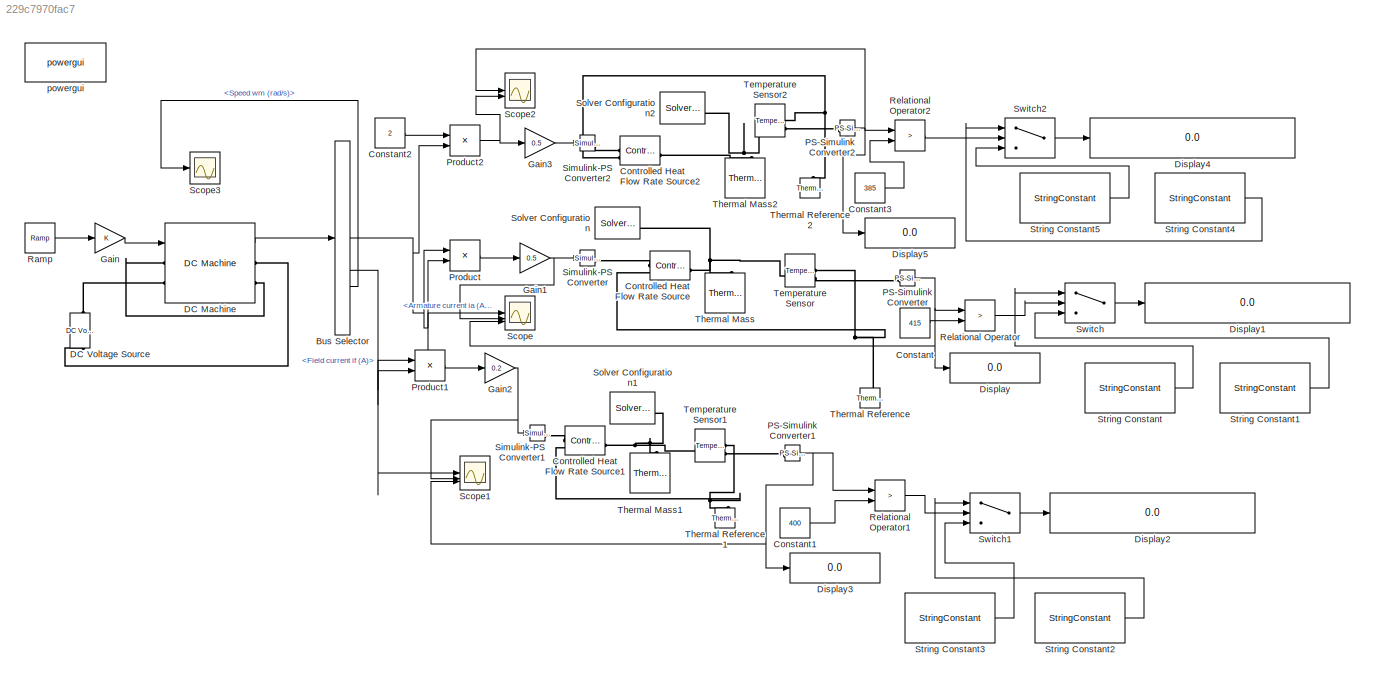
MODEL slx_229c7970fac7
KIND model
CONFIG AbsTol = auto
CONFIG EnableMultiTasking = off
CONFIG FixedStep = auto
CONFIG MaxStep = auto
CONFIG MinStep = auto
CONFIG RelTol = 1e-3
CONFIG SampleTimeConstraint = Unconstrained
CONFIG SolverName = VariableStepAuto
CONFIG StartTime = 0.0
CONFIG StopTime = 1800
BLOCK [BusSelector] Bus Selector
  OutputSignals = Armature current ia (A),Field current if (A),Speed wm (rad/s)
BLOCK [Constant] Constant
  Value = 415
BLOCK [Constant] Constant1
  Value = 400
BLOCK [Constant] Constant2
  Value = 2
BLOCK [Constant] Constant3
  Value = 385
BLOCK [Reference] Controlled Heat Flow Rate Source  REF=fl_lib/Thermal/Thermal Sources/Controlled Heat Flow
Rate Source
  SourceBlock = fl_lib/Thermal/Thermal Sources/Controlled Heat Flow\nRate Source
  SourceType = Controlled Heat Flow\nRate Source
BLOCK [Reference] Controlled Heat Flow Rate Source1  REF=fl_lib/Thermal/Thermal Sources/Controlled Heat Flow
Rate Source
  SourceBlock = fl_lib/Thermal/Thermal Sources/Controlled Heat Flow\nRate Source
  SourceType = Controlled Heat Flow\nRate Source
BLOCK [Reference] Controlled Heat Flow Rate Source2  REF=fl_lib/Thermal/Thermal Sources/Controlled Heat Flow
Rate Source
  SourceBlock = fl_lib/Thermal/Thermal Sources/Controlled Heat Flow\nRate Source
  SourceType = Controlled Heat Flow\nRate Source
BLOCK [Reference] DC Machine  REF=spsDCMachineLib/DC Machine
  LibrarySourceBlock = sps_lib/Electrical Machines/DC Machine
  SourceBlock = spsDCMachineLib/DC Machine
  SourceType = DC machine
BLOCK [Reference] DC Voltage Source  REF=spsDCVoltageSourceLib/DC Voltage Source
  LibrarySourceBlock = sps_lib/Sources/DC Voltage Source
  SourceBlock = spsDCVoltageSourceLib/DC Voltage Source
  SourceType = DC Voltage Source
BLOCK [Display] Display
  Decimation = 1
BLOCK [Display] Display1
  Decimation = 1
BLOCK [Display] Display2
  Decimation = 1
BLOCK [Display] Display3
  Decimation = 1
BLOCK [Display] Display4
  Decimation = 1
BLOCK [Display] Display5
  Decimation = 1
BLOCK [Gain] Gain
BLOCK [Gain] Gain1
  Gain = 0.5
BLOCK [Gain] Gain2
  Gain = 0.2
BLOCK [Gain] Gain3
  Gain = 0.5
BLOCK [Reference] PS-Simulink Converter  REF=nesl_utility/PS-Simulink
Converter
  SourceBlock = nesl_utility/PS-Simulink\nConverter
  SourceType = PS-Simulink\nConverter
BLOCK [Reference] PS-Simulink Converter1  REF=nesl_utility/PS-Simulink
Converter
  SourceBlock = nesl_utility/PS-Simulink\nConverter
  SourceType = PS-Simulink\nConverter
BLOCK [Reference] PS-Simulink Converter2  REF=nesl_utility/PS-Simulink
Converter
  SourceBlock = nesl_utility/PS-Simulink\nConverter
  SourceType = PS-Simulink\nConverter
BLOCK [Product] Product
BLOCK [Product] Product1
BLOCK [Product] Product2
BLOCK [Reference] Ramp  REF=simulink/Sources/Ramp
  SourceBlock = simulink/Sources/Ramp
  SourceType = Ramp
BLOCK [RelationalOperator] Relational Operator
  InputSameDT = off
  Operator = >
  OutDataTypeStr = boolean
  RndMeth = Simplest
BLOCK [RelationalOperator] Relational Operator1
  InputSameDT = off
  Operator = >
  OutDataTypeStr = boolean
  RndMeth = Simplest
BLOCK [RelationalOperator] Relational Operator2
  InputSameDT = off
  Operator = >
  OutDataTypeStr = boolean
  RndMeth = Simplest
BLOCK [Scope] Scope
  Floating = off
  NumInputPorts = 3
  ScopeSpecificationString = Simulink.scopes.TimeScopeBlockCfg('CurrentConfiguration', extmgr.ConfigurationSet(extmgr.Configuration('Core','General UI',true),extmgr.Configuration('Core','Source UI',true),extmgr.Configuration('Sources','WiredSimulink',true),extmgr.Configuration('Visuals','Time Domain',true,'SerializedDisplays',{struct('MinYLimReal','-4.50869','MaxYLimReal','48.87733','YLabelReal','','MinYLimMag','0.00000','Max...<+3039ch>
BLOCK [Scope] Scope1
  Floating = off
  NumInputPorts = 3
  ScopeSpecificationString = Simulink.scopes.TimeScopeBlockCfg('CurrentConfiguration', extmgr.ConfigurationSet(extmgr.Configuration('Core','General UI',true),extmgr.Configuration('Core','Source UI',true),extmgr.Configuration('Sources','WiredSimulink',true,'DataLoggingVariableName','ScopeData1'),extmgr.Configuration('Visuals','Time Domain',true,'SerializedDisplays',{struct('MinYLimReal','-4.50869','MaxYLimReal','48.87733','YLa...<+3074ch>
BLOCK [Scope] Scope2
  Floating = off
  NumInputPorts = 2
  ScopeSpecificationString = Simulink.scopes.TimeScopeBlockCfg('CurrentConfiguration', extmgr.ConfigurationSet(extmgr.Configuration('Core','General UI',true),extmgr.Configuration('Core','Source UI',true),extmgr.Configuration('Sources','WiredSimulink',true,'DataLoggingVariableName','ScopeData2'),extmgr.Configuration('Visuals','Time Domain',true,'SerializedDisplays',{struct('MinYLimReal','279.59505','MaxYLimReal','463.64455','Y...<+2194ch>
BLOCK [Scope] Scope3
  Floating = off
  NumInputPorts = 1
  ScopeSpecificationString = Simulink.scopes.TimeScopeBlockCfg('CurrentConfiguration', extmgr.ConfigurationSet(extmgr.Configuration('Core','General UI',true),extmgr.Configuration('Core','Source UI',true),extmgr.Configuration('Sources','WiredSimulink',true,'DataLoggingVariableName','ScopeData1'),extmgr.Configuration('Visuals','Time Domain',true,'SerializedDisplays',{struct('MinYLimReal','-331.12675','MaxYLimReal','45.28819','Y...<+1478ch>
BLOCK [Reference] Simulink-PS Converter  REF=nesl_utility/Simulink-PS
Converter
  SourceBlock = nesl_utility/Simulink-PS\nConverter
  SourceType = Simulink-PS\nConverter
BLOCK [Reference] Simulink-PS Converter1  REF=nesl_utility/Simulink-PS
Converter
  SourceBlock = nesl_utility/Simulink-PS\nConverter
  SourceType = Simulink-PS\nConverter
BLOCK [Reference] Simulink-PS Converter2  REF=nesl_utility/Simulink-PS
Converter
  SourceBlock = nesl_utility/Simulink-PS\nConverter
  SourceType = Simulink-PS\nConverter
BLOCK [Reference] Solver Configuration  REF=nesl_utility/Solver
Configuration
  SourceBlock = nesl_utility/Solver\nConfiguration
  SourceType = Solver\nConfiguration
BLOCK [Reference] Solver Configuration1  REF=nesl_utility/Solver
Configuration
  SourceBlock = nesl_utility/Solver\nConfiguration
  SourceType = Solver\nConfiguration
BLOCK [Reference] Solver Configuration2  REF=nesl_utility/Solver
Configuration
  SourceBlock = nesl_utility/Solver\nConfiguration
  SourceType = Solver\nConfiguration
BLOCK [StringConstant] String Constant
  String = "ARMATURE WINDING HEATING"
BLOCK [StringConstant] String Constant1
  String = "NORMAL"
BLOCK [StringConstant] String Constant2
  String = "FIELD WINDING HEATING"
BLOCK [StringConstant] String Constant3
  String = "NORMAL"
BLOCK [StringConstant] String Constant4
  String = "BRUSH HEATING"
BLOCK [StringConstant] String Constant5
  String = "NORMAL"
BLOCK [Switch] Switch
  Criteria = u2 > Threshold
  InputSameDT = off
  SaturateOnIntegerOverflow = off
  Threshold = 0.5
BLOCK [Switch] Switch1
  Criteria = u2 > Threshold
  InputSameDT = off
  SaturateOnIntegerOverflow = off
  Threshold = 0.5
BLOCK [Switch] Switch2
  Criteria = u2 > Threshold
  InputSameDT = off
  SaturateOnIntegerOverflow = off
  Threshold = 0.5
BLOCK [Reference] Temperature Sensor  REF=fl_lib/Thermal/Thermal Sensors/Temperature Sensor
  SourceBlock = fl_lib/Thermal/Thermal Sensors/Temperature Sensor
  SourceType = Temperature Sensor
BLOCK [Reference] Temperature Sensor1  REF=fl_lib/Thermal/Thermal Sensors/Temperature Sensor
  SourceBlock = fl_lib/Thermal/Thermal Sensors/Temperature Sensor
  SourceType = Temperature Sensor
BLOCK [Reference] Temperature Sensor2  REF=fl_lib/Thermal/Thermal Sensors/Temperature Sensor
  SourceBlock = fl_lib/Thermal/Thermal Sensors/Temperature Sensor
  SourceType = Temperature Sensor
BLOCK [Reference] Thermal Mass  REF=fl_lib/Thermal/Thermal Elements/Thermal Mass
  NameLocation = right
  SourceBlock = fl_lib/Thermal/Thermal Elements/Thermal Mass
  SourceType = Thermal Mass
BLOCK [Reference] Thermal Mass1  REF=fl_lib/Thermal/Thermal Elements/Thermal Mass
  NameLocation = right
  SourceBlock = fl_lib/Thermal/Thermal Elements/Thermal Mass
  SourceType = Thermal Mass
BLOCK [Reference] Thermal Mass2  REF=fl_lib/Thermal/Thermal Elements/Thermal Mass
  NameLocation = right
  SourceBlock = fl_lib/Thermal/Thermal Elements/Thermal Mass
  SourceType = Thermal Mass
BLOCK [Reference] Thermal Reference  REF=fl_lib/Thermal/Thermal Elements/Thermal Reference
  NameLocation = right
  SourceBlock = fl_lib/Thermal/Thermal Elements/Thermal Reference
  SourceType = Thermal Reference
BLOCK [Reference] Thermal Reference1  REF=fl_lib/Thermal/Thermal Elements/Thermal Reference
  NameLocation = right
  SourceBlock = fl_lib/Thermal/Thermal Elements/Thermal Reference
  SourceType = Thermal Reference
BLOCK [Reference] Thermal Reference2  REF=fl_lib/Thermal/Thermal Elements/Thermal Reference
  NameLocation = right
  SourceBlock = fl_lib/Thermal/Thermal Elements/Thermal Reference
  SourceType = Thermal Reference
BLOCK [Reference] powergui  REF=sps_lib/powergui
  LibrarySourceBlock = sps_lib/powergui
  Priority = 1
  SourceBlock = sps_lib/powergui
  SourceType = PSB option menu block
NET Bus Selector:1 -> Product2:2, Product:1, Product:2, Scope:1
NET Bus Selector:2 -> Product1:1, Product1:2, Scope1:1
LINE Bus Selector:3 -> Scope3:1
LINE Constant1:1 -> Relational Operator1:2
LINE Constant2:1 -> Product2:1
LINE Constant3:1 -> Relational Operator2:2
LINE Constant:1 -> Relational Operator:2
LINE DC Machine:1 -> Bus Selector:1
NET Gain1:1 -> Scope:2, Simulink-PS Converter:1
NET Gain2:1 -> Scope1:2, Simulink-PS Converter1:1
LINE Gain3:1 -> Simulink-PS Converter2:1
LINE Gain:1 -> DC Machine:1
NET PS-Simulink Converter1:1 -> Display3:1, Relational Operator1:1, Scope1:3
NET PS-Simulink Converter2:1 -> Display5:1, Relational Operator2:1, Scope2:1
NET PS-Simulink Converter:1 -> Display:1, Relational Operator:1, Scope:3
LINE Product1:1 -> Gain2:1
NET Product2:1 -> Gain3:1, Scope2:2
LINE Product:1 -> Gain1:1
LINE Ramp:1 -> Gain:1
LINE Relational Operator1:1 -> Switch1:2
LINE Relational Operator2:1 -> Switch2:2
LINE Relational Operator:1 -> Switch:2
LINE String Constant1:1 -> Switch:3
LINE String Constant2:1 -> Switch1:1
LINE String Constant3:1 -> Switch1:3
LINE String Constant4:1 -> Switch2:1
LINE String Constant5:1 -> Switch2:3
LINE String Constant:1 -> Switch:1
LINE Switch1:1 -> Display2:1
LINE Switch2:1 -> Display4:1
LINE Switch:1 -> Display1:1
PNET net1: Controlled Heat Flow Rate Source1:LConn1 -- Solver Configuration1:RConn1 -- Temperature Sensor1:LConn1 -- Thermal Mass1:LConn1
PLINE Controlled Heat Flow Rate Source1:RConn1 -- Simulink-PS Converter1:RConn1
PNET net2: Controlled Heat Flow Rate Source1:RConn2 -- Temperature Sensor1:RConn1 -- Thermal Reference1:LConn1
PNET net3: Controlled Heat Flow Rate Source2:LConn1 -- Solver Configuration2:RConn1 -- Temperature Sensor2:LConn1 -- Thermal Mass2:LConn1
PLINE Controlled Heat Flow Rate Source2:RConn1 -- Simulink-PS Converter2:RConn1
PNET net4: Controlled Heat Flow Rate Source2:RConn2 -- Temperature Sensor2:RConn1 -- Thermal Reference2:LConn1
PNET net5: Controlled Heat Flow Rate Source:LConn1 -- Solver Configuration:RConn1 -- Temperature Sensor:LConn1 -- Thermal Mass:LConn1
PLINE Controlled Heat Flow Rate Source:RConn1 -- Simulink-PS Converter:RConn1
PNET net6: Controlled Heat Flow Rate Source:RConn2 -- Temperature Sensor:RConn1 -- Thermal Reference:LConn1
PLINE DC Machine:LConn1 -- DC Machine:RConn2
PLINE DC Machine:LConn2 -- DC Voltage Source:RConn1
PLINE DC Machine:RConn1 -- DC Voltage Source:LConn1
PLINE PS-Simulink Converter1:LConn1 -- Temperature Sensor1:RConn2
PLINE PS-Simulink Converter2:LConn1 -- Temperature Sensor2:RConn2
PLINE PS-Simulink Converter:LConn1 -- Temperature Sensor:RConn2
note: NET lines group one-source signal fan-out (src -> all destinations, sorted); 1:1 wires keep LINE; PNET lines group multi-terminal physical nets as a canonical sorted terminal list (undirected conserving connections); 2-terminal nets keep the pairwise PLINE form
